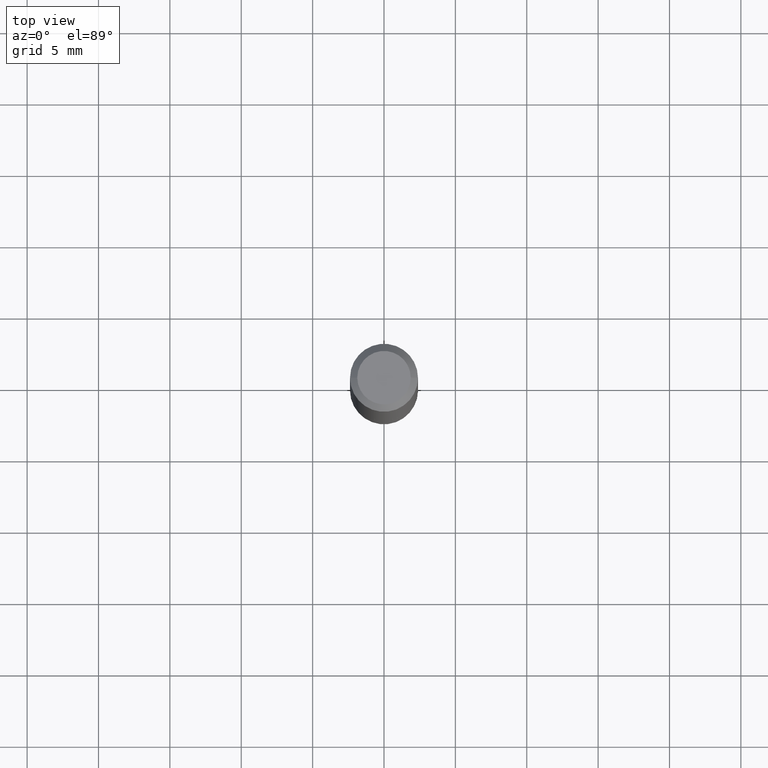
[diagram: clean part render]
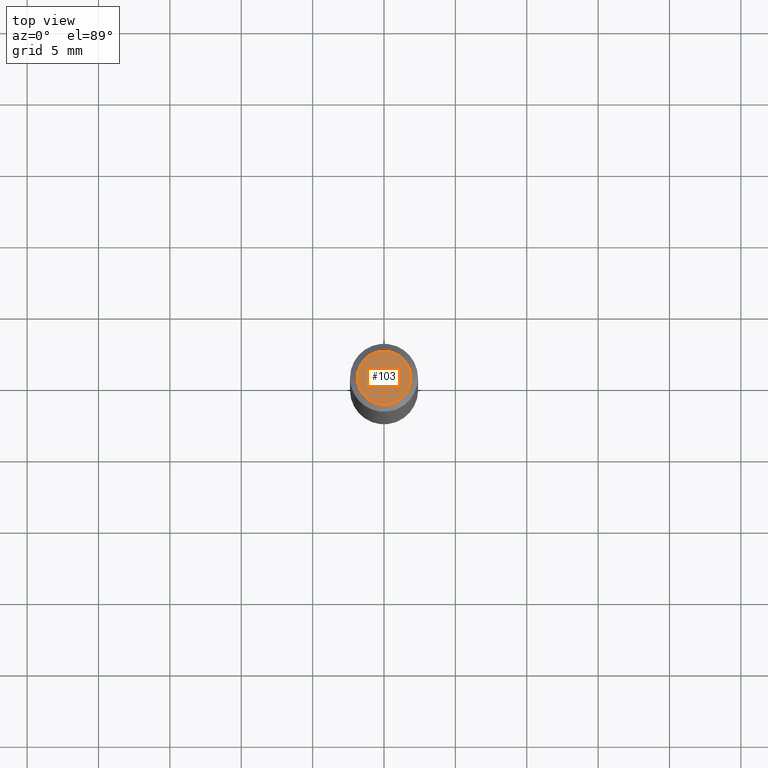
[diagram: same view with one face highlighted and labeled with its STEP entity id]
A machine part, top view. The second image highlights one B-rep face of the part: STEP entity #103.
In plain terms, the highlighted planar face has unit normal (0, -0, -1).
Its self-contained STEP definition (entity closure, byte-faithful):
#3 = DIRECTION ( 'NONE',  ( -2.445468806185136597E-29, 3.491481338843145583E-15, 1.000000000000000000 ) ) ;
#30 = CARTESIAN_POINT ( 'NONE',  ( -0.07374999999999984346, 5.499083108677921624E-16, 4.268512490096688071E-18 ) ) ;
#34 = CARTESIAN_POINT ( 'NONE',  ( 0.07374999999999984346, -6.094815207017961198E-16, 4.268512490104342487E-18 ) ) ;
#44 = DIRECTION ( 'NONE',  ( 1.000000000000000000, -6.982962677686266711E-15, 4.875869617646595616E-29 ) ) ;
#47 = CARTESIAN_POINT ( 'NONE',  ( 5.149934974793610063E-16, 0.07374999999999984346, -2.553624924946312759E-16 ) ) ;
#50 = PLANE ( 'NONE',  #57 ) ;
#54 = EDGE_LOOP ( 'NONE', ( #335, #213 ) ) ;
#57 = AXIS2_PLACEMENT_3D ( 'NONE', #47, #359, #245 ) ;
#60 = DIRECTION ( 'NONE',  ( 1.000000000000000000, -6.982962677686266711E-15, 4.875869617646595616E-29 ) ) ;
#100 = AXIS2_PLACEMENT_3D ( 'NONE', #121, #3, #60 ) ;
#103 = ADVANCED_FACE ( 'NONE', ( #163 ), #50, .F. ) ;
#121 = CARTESIAN_POINT ( 'NONE',  ( -1.043851414335219820E-46, 1.490343170380447200E-32, 4.268512490100411279E-18 ) ) ;
#163 = FACE_OUTER_BOUND ( 'NONE', #54, .T. ) ;
#166 = EDGE_CURVE ( 'NONE', #271, #320, #261, .T. ) ;
#213 = ORIENTED_EDGE ( 'NONE', *, *, #166, .T. ) ;
#229 = CIRCLE ( 'NONE', #277, 0.07374999999999984346 ) ;
#242 = EDGE_CURVE ( 'NONE', #320, #271, #229, .T. ) ;
#245 = DIRECTION ( 'NONE',  ( -1.000000000000000000, 6.982962677686265922E-15, -4.876176775795935793E-29 ) ) ;
#261 = CIRCLE ( 'NONE', #100, 0.07374999999999984346 ) ;
#271 = VERTEX_POINT ( 'NONE', #34 ) ;
#277 = AXIS2_PLACEMENT_3D ( 'NONE', #281, #351, #44 ) ;
#281 = CARTESIAN_POINT ( 'NONE',  ( -1.043851414335219820E-46, 1.490343170380447200E-32, 4.268512490100411279E-18 ) ) ;
#320 = VERTEX_POINT ( 'NONE', #30 ) ;
#335 = ORIENTED_EDGE ( 'NONE', *, *, #242, .T. ) ;
#351 = DIRECTION ( 'NONE',  ( -2.445468806185136597E-29, 3.491481338843145583E-15, 1.000000000000000000 ) ) ;
#359 = DIRECTION ( 'NONE',  ( 2.438088387897960049E-29, -3.491481338843145188E-15, -1.000000000000000000 ) ) ;